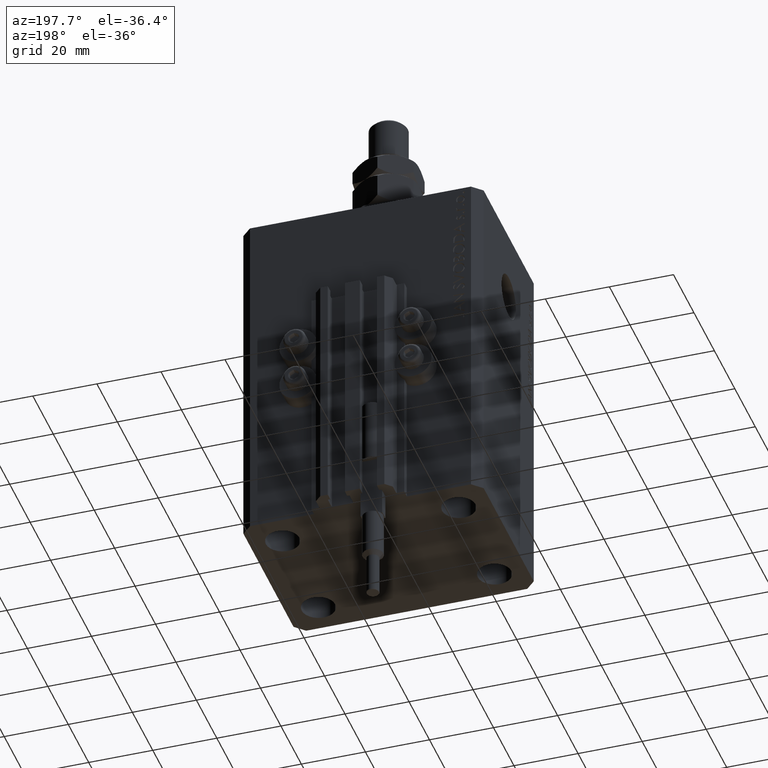
[diagram: clean part render]
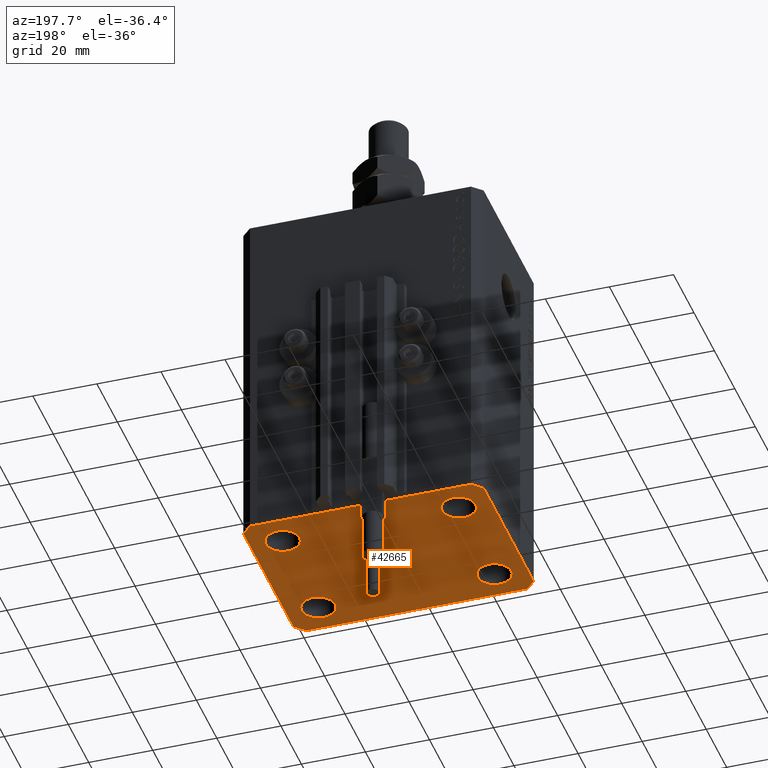
[diagram: same view with one face highlighted and labeled with its STEP entity id]
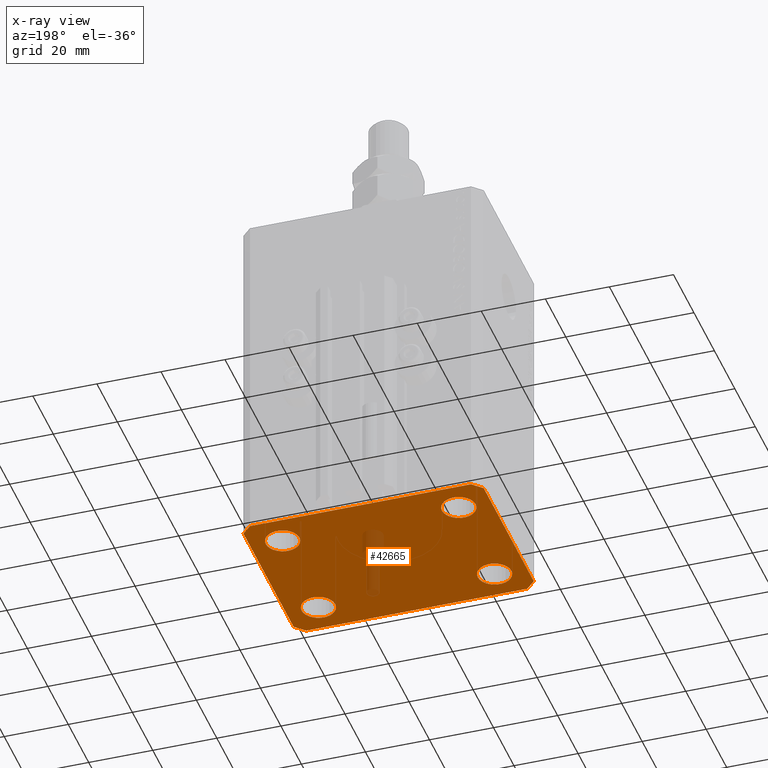
[diagram: x-ray of the same camera — body ghosted, the highlighted face saturated]
A machine part, auxiliary view. The second image highlights one B-rep face of the part: STEP entity #42665.
The next image is the same camera in x-ray: the body ghosted, the highlighted face saturated — about 4% of this face is hidden behind the body in this view.
In plain terms, the highlighted planar face has unit normal (0, 0, 1).
Its self-contained STEP definition (entity closure, byte-faithful):
#176 = CARTESIAN_POINT ( 'NONE',  ( 0.000000000000000000, 0.000000000000000000, -110.0000000000000000 ) ) ;
#235 = LINE ( 'NONE', #46137, #36135 ) ;
#550 = DIRECTION ( 'NONE',  ( 1.000000000000000000, 0.000000000000000000, 0.000000000000000000 ) ) ;
#578 = EDGE_LOOP ( 'NONE', ( #5749, #34386 ) ) ;
#620 = ORIENTED_EDGE ( 'NONE', *, *, #46947, .F. ) ;
#677 = FACE_BOUND ( 'NONE', #4643, .T. ) ;
#1601 = DIRECTION ( 'NONE',  ( -0.000000000000000000, -0.000000000000000000, -1.000000000000000000 ) ) ;
#2041 = VERTEX_POINT ( 'NONE', #37086 ) ;
#2068 = AXIS2_PLACEMENT_3D ( 'NONE', #23052, #11523, #38089 ) ;
#2343 = VERTEX_POINT ( 'NONE', #10719 ) ;
#3255 = VERTEX_POINT ( 'NONE', #38784 ) ;
#3475 = FACE_BOUND ( 'NONE', #578, .T. ) ;
#4110 = AXIS2_PLACEMENT_3D ( 'NONE', #25479, #5917, #48530 ) ;
#4617 = EDGE_CURVE ( 'NONE', #2343, #38802, #42328, .T. ) ;
#4643 = EDGE_LOOP ( 'NONE', ( #35872, #31956 ) ) ;
#4925 = ORIENTED_EDGE ( 'NONE', *, *, #24273, .F. ) ;
#5039 = ORIENTED_EDGE ( 'NONE', *, *, #29933, .F. ) ;
#5137 = DIRECTION ( 'NONE',  ( 1.000000000000000000, 0.000000000000000000, 0.000000000000000000 ) ) ;
#5367 = EDGE_CURVE ( 'NONE', #29144, #14976, #29426, .T. ) ;
#5749 = ORIENTED_EDGE ( 'NONE', *, *, #22908, .F. ) ;
#5917 = DIRECTION ( 'NONE',  ( -0.000000000000000000, -0.000000000000000000, -1.000000000000000000 ) ) ;
#5986 = CIRCLE ( 'NONE', #2068, 5.250000000000000888 ) ;
#6015 = VERTEX_POINT ( 'NONE', #17285 ) ;
#6140 = CARTESIAN_POINT ( 'NONE',  ( 32.75000000000000000, 17.49999999999999289, -110.0000000000000000 ) ) ;
#6504 = ORIENTED_EDGE ( 'NONE', *, *, #31193, .F. ) ;
#6575 = VECTOR ( 'NONE', #8548, 1000.000000000000000 ) ;
#6783 = CIRCLE ( 'NONE', #38033, 5.250000000000000888 ) ;
#6841 = DIRECTION ( 'NONE',  ( 1.000000000000000000, 0.000000000000000000, 0.000000000000000000 ) ) ;
#8548 = DIRECTION ( 'NONE',  ( 0.000000000000000000, -1.000000000000000000, 0.000000000000000000 ) ) ;
#9000 = CARTESIAN_POINT ( 'NONE',  ( 34.50000000000056843, 27.50000000000000000, -110.0000000000000000 ) ) ;
#9128 = VECTOR ( 'NONE', #34310, 1000.000000000000000 ) ;
#9379 = CARTESIAN_POINT ( 'NONE',  ( 34.50000000000056843, 27.50000000000000000, -110.0000000000000000 ) ) ;
#9392 = CARTESIAN_POINT ( 'NONE',  ( -34.49999999999999289, 27.50000000000000000, -110.0000000000000000 ) ) ;
#9572 = CARTESIAN_POINT ( 'NONE',  ( -37.49999999999999289, -24.50000000000000000, -110.0000000000000000 ) ) ;
#9886 = VERTEX_POINT ( 'NONE', #21276 ) ;
#10719 = CARTESIAN_POINT ( 'NONE',  ( -34.49999999999998579, -27.49999999999999645, -110.0000000000000000 ) ) ;
#10849 = AXIS2_PLACEMENT_3D ( 'NONE', #176, #26792, #42818 ) ;
#11442 = CARTESIAN_POINT ( 'NONE',  ( 27.50000000000000000, 17.49999999999999289, -110.0000000000000000 ) ) ;
#11523 = DIRECTION ( 'NONE',  ( -0.000000000000000000, -0.000000000000000000, -1.000000000000000000 ) ) ;
#11587 = ORIENTED_EDGE ( 'NONE', *, *, #5367, .F. ) ;
#11810 = DIRECTION ( 'NONE',  ( 1.076236605503979380E-14, 1.000000000000000000, 0.000000000000000000 ) ) ;
#13385 = LINE ( 'NONE', #9379, #39003 ) ;
#13572 = VERTEX_POINT ( 'NONE', #6140 ) ;
#13604 = CARTESIAN_POINT ( 'NONE',  ( 27.50000000000000000, 17.49999999999999289, -110.0000000000000000 ) ) ;
#13653 = VECTOR ( 'NONE', #14304, 1000.000000000000114 ) ;
#14304 = DIRECTION ( 'NONE',  ( 0.7071067811865474617, 0.7071067811865474617, 0.000000000000000000 ) ) ;
#14976 = VERTEX_POINT ( 'NONE', #19975 ) ;
#15029 = AXIS2_PLACEMENT_3D ( 'NONE', #11442, #26972, #37508 ) ;
#15986 = FACE_BOUND ( 'NONE', #30718, .T. ) ;
#16445 = CIRCLE ( 'NONE', #17271, 5.250000000000000888 ) ;
#16771 = DIRECTION ( 'NONE',  ( -0.000000000000000000, -0.000000000000000000, -1.000000000000000000 ) ) ;
#17271 = AXIS2_PLACEMENT_3D ( 'NONE', #43011, #1601, #5137 ) ;
#17285 = CARTESIAN_POINT ( 'NONE',  ( -22.24999999999999289, -17.50000000000000000, -110.0000000000000000 ) ) ;
#17534 = VERTEX_POINT ( 'NONE', #40181 ) ;
#18060 = CARTESIAN_POINT ( 'NONE',  ( 34.49999999999999289, -27.49999999999999645, -110.0000000000000000 ) ) ;
#18279 = ORIENTED_EDGE ( 'NONE', *, *, #27476, .F. ) ;
#19579 = CARTESIAN_POINT ( 'NONE',  ( -37.49999999999999289, 24.50000000000000000, -110.0000000000000000 ) ) ;
#19975 = CARTESIAN_POINT ( 'NONE',  ( -37.49999999999999289, 24.50000000000000000, -110.0000000000000000 ) ) ;
#20265 = VERTEX_POINT ( 'NONE', #9000 ) ;
#20619 = CARTESIAN_POINT ( 'NONE',  ( 34.49999999999999289, -27.49999999999999645, -110.0000000000000000 ) ) ;
#21135 = DIRECTION ( 'NONE',  ( -0.000000000000000000, -0.000000000000000000, -1.000000000000000000 ) ) ;
#21202 = CIRCLE ( 'NONE', #49217, 5.250000000000000888 ) ;
#21276 = CARTESIAN_POINT ( 'NONE',  ( 37.50000000000051870, 24.49999999999995381, -110.0000000000000000 ) ) ;
#22658 = ORIENTED_EDGE ( 'NONE', *, *, #46245, .F. ) ;
#22908 = EDGE_CURVE ( 'NONE', #17534, #30527, #28462, .T. ) ;
#23052 = CARTESIAN_POINT ( 'NONE',  ( 27.49999999999999289, -17.50000000000000000, -110.0000000000000000 ) ) ;
#23587 = LINE ( 'NONE', #19579, #6575 ) ;
#24273 = EDGE_CURVE ( 'NONE', #3255, #38279, #5986, .T. ) ;
#24378 = CARTESIAN_POINT ( 'NONE',  ( -37.49999999999999289, -24.50000000000000000, -110.0000000000000000 ) ) ;
#24669 = DIRECTION ( 'NONE',  ( -1.000000000000000000, 0.000000000000000000, 0.000000000000000000 ) ) ;
#25401 = EDGE_LOOP ( 'NONE', ( #4925, #22658 ) ) ;
#25479 = CARTESIAN_POINT ( 'NONE',  ( -27.50000000000000000, 17.49999999999999645, -110.0000000000000000 ) ) ;
#26576 = ORIENTED_EDGE ( 'NONE', *, *, #39879, .F. ) ;
#26697 = DIRECTION ( 'NONE',  ( -0.000000000000000000, -0.000000000000000000, -1.000000000000000000 ) ) ;
#26792 = DIRECTION ( 'NONE',  ( 0.000000000000000000, 0.000000000000000000, 1.000000000000000000 ) ) ;
#26972 = DIRECTION ( 'NONE',  ( -0.000000000000000000, -0.000000000000000000, -1.000000000000000000 ) ) ;
#27333 = EDGE_CURVE ( 'NONE', #6015, #41869, #21202, .T. ) ;
#27476 = EDGE_CURVE ( 'NONE', #13572, #2041, #6783, .T. ) ;
#27527 = PLANE ( 'NONE',  #10849 ) ;
#27574 = DIRECTION ( 'NONE',  ( 1.000000000000000000, 0.000000000000000000, 0.000000000000000000 ) ) ;
#28275 = EDGE_CURVE ( 'NONE', #9886, #20265, #29407, .T. ) ;
#28462 = CIRCLE ( 'NONE', #36441, 5.250000000000000888 ) ;
#28776 = EDGE_CURVE ( 'NONE', #38802, #35904, #44387, .T. ) ;
#29144 = VERTEX_POINT ( 'NONE', #30288 ) ;
#29407 = LINE ( 'NONE', #37676, #37684 ) ;
#29426 = LINE ( 'NONE', #9392, #29948 ) ;
#29440 = CARTESIAN_POINT ( 'NONE',  ( -32.74999999999999289, -17.50000000000000000, -110.0000000000000000 ) ) ;
#29459 = EDGE_CURVE ( 'NONE', #30527, #17534, #37721, .T. ) ;
#29933 = EDGE_CURVE ( 'NONE', #35904, #9886, #235, .T. ) ;
#29948 = VECTOR ( 'NONE', #32690, 1000.000000000000000 ) ;
#30235 = CARTESIAN_POINT ( 'NONE',  ( -32.75000000000000000, 17.49999999999999645, -110.0000000000000000 ) ) ;
#30288 = CARTESIAN_POINT ( 'NONE',  ( -34.49999999999999289, 27.50000000000000000, -110.0000000000000000 ) ) ;
#30412 = CARTESIAN_POINT ( 'NONE',  ( -27.50000000000000000, 17.49999999999999645, -110.0000000000000000 ) ) ;
#30527 = VERTEX_POINT ( 'NONE', #30235 ) ;
#30589 = ORIENTED_EDGE ( 'NONE', *, *, #4617, .F. ) ;
#30718 = EDGE_LOOP ( 'NONE', ( #18279, #46341 ) ) ;
#31193 = EDGE_CURVE ( 'NONE', #14976, #43310, #23587, .T. ) ;
#31629 = LINE ( 'NONE', #9572, #39582 ) ;
#31956 = ORIENTED_EDGE ( 'NONE', *, *, #43058, .F. ) ;
#32690 = DIRECTION ( 'NONE',  ( -0.7071067811865471286, -0.7071067811865479058, 0.000000000000000000 ) ) ;
#33806 = CARTESIAN_POINT ( 'NONE',  ( -34.49999999999998579, -27.49999999999999645, -110.0000000000000000 ) ) ;
#33936 = DIRECTION ( 'NONE',  ( -0.000000000000000000, -0.000000000000000000, -1.000000000000000000 ) ) ;
#34310 = DIRECTION ( 'NONE',  ( 1.000000000000000000, 0.000000000000000000, 0.000000000000000000 ) ) ;
#34386 = ORIENTED_EDGE ( 'NONE', *, *, #29459, .F. ) ;
#35872 = ORIENTED_EDGE ( 'NONE', *, *, #27333, .F. ) ;
#35904 = VERTEX_POINT ( 'NONE', #46521 ) ;
#36135 = VECTOR ( 'NONE', #11810, 1000.000000000000000 ) ;
#36441 = AXIS2_PLACEMENT_3D ( 'NONE', #30412, #33936, #550 ) ;
#37086 = CARTESIAN_POINT ( 'NONE',  ( 22.25000000000000000, 17.49999999999999289, -110.0000000000000000 ) ) ;
#37443 = EDGE_LOOP ( 'NONE', ( #620, #46659, #5039, #41487, #30589, #26576, #6504, #11587 ) ) ;
#37508 = DIRECTION ( 'NONE',  ( 1.000000000000000000, 0.000000000000000000, 0.000000000000000000 ) ) ;
#37676 = CARTESIAN_POINT ( 'NONE',  ( 37.50000000000051870, 24.49999999999995381, -110.0000000000000000 ) ) ;
#37684 = VECTOR ( 'NONE', #48202, 1000.000000000000114 ) ;
#37721 = CIRCLE ( 'NONE', #4110, 5.250000000000000888 ) ;
#38033 = AXIS2_PLACEMENT_3D ( 'NONE', #13604, #21135, #6841 ) ;
#38089 = DIRECTION ( 'NONE',  ( 1.000000000000000000, 0.000000000000000000, 0.000000000000000000 ) ) ;
#38181 = AXIS2_PLACEMENT_3D ( 'NONE', #39847, #16771, #27574 ) ;
#38279 = VERTEX_POINT ( 'NONE', #40337 ) ;
#38784 = CARTESIAN_POINT ( 'NONE',  ( 32.74999999999999289, -17.50000000000000000, -110.0000000000000000 ) ) ;
#38802 = VERTEX_POINT ( 'NONE', #20619 ) ;
#39003 = VECTOR ( 'NONE', #24669, 1000.000000000000000 ) ;
#39582 = VECTOR ( 'NONE', #40155, 1000.000000000000000 ) ;
#39827 = CIRCLE ( 'NONE', #15029, 5.250000000000000888 ) ;
#39847 = CARTESIAN_POINT ( 'NONE',  ( 27.49999999999999289, -17.50000000000000000, -110.0000000000000000 ) ) ;
#39879 = EDGE_CURVE ( 'NONE', #43310, #2343, #31629, .T. ) ;
#40155 = DIRECTION ( 'NONE',  ( 0.7071067811865483499, -0.7071067811865466846, 0.000000000000000000 ) ) ;
#40181 = CARTESIAN_POINT ( 'NONE',  ( -22.25000000000000000, 17.49999999999999645, -110.0000000000000000 ) ) ;
#40337 = CARTESIAN_POINT ( 'NONE',  ( 22.24999999999999289, -17.50000000000000000, -110.0000000000000000 ) ) ;
#41487 = ORIENTED_EDGE ( 'NONE', *, *, #28776, .F. ) ;
#41835 = FACE_OUTER_BOUND ( 'NONE', #37443, .T. ) ;
#41869 = VERTEX_POINT ( 'NONE', #29440 ) ;
#41992 = DIRECTION ( 'NONE',  ( 1.000000000000000000, 0.000000000000000000, 0.000000000000000000 ) ) ;
#42328 = LINE ( 'NONE', #33806, #9128 ) ;
#42665 = ADVANCED_FACE ( 'NONE', ( #677, #49589, #15986, #3475, #41835 ), #27527, .F. ) ;
#42818 = DIRECTION ( 'NONE',  ( 1.000000000000000000, 0.000000000000000000, -0.000000000000000000 ) ) ;
#43011 = CARTESIAN_POINT ( 'NONE',  ( -27.49999999999999289, -17.50000000000000000, -110.0000000000000000 ) ) ;
#43058 = EDGE_CURVE ( 'NONE', #41869, #6015, #16445, .T. ) ;
#43310 = VERTEX_POINT ( 'NONE', #24378 ) ;
#44387 = LINE ( 'NONE', #18060, #13653 ) ;
#46137 = CARTESIAN_POINT ( 'NONE',  ( 37.49999999999999289, -24.50000000000000000, -110.0000000000000000 ) ) ;
#46245 = EDGE_CURVE ( 'NONE', #38279, #3255, #49406, .T. ) ;
#46341 = ORIENTED_EDGE ( 'NONE', *, *, #47590, .F. ) ;
#46467 = CARTESIAN_POINT ( 'NONE',  ( -27.49999999999999289, -17.50000000000000000, -110.0000000000000000 ) ) ;
#46521 = CARTESIAN_POINT ( 'NONE',  ( 37.49999999999999289, -24.50000000000000000, -110.0000000000000000 ) ) ;
#46659 = ORIENTED_EDGE ( 'NONE', *, *, #28275, .F. ) ;
#46947 = EDGE_CURVE ( 'NONE', #20265, #29144, #13385, .T. ) ;
#47590 = EDGE_CURVE ( 'NONE', #2041, #13572, #39827, .T. ) ;
#48202 = DIRECTION ( 'NONE',  ( -0.7071067811865364705, 0.7071067811865584529, 0.000000000000000000 ) ) ;
#48530 = DIRECTION ( 'NONE',  ( 1.000000000000000000, 0.000000000000000000, 0.000000000000000000 ) ) ;
#49217 = AXIS2_PLACEMENT_3D ( 'NONE', #46467, #26697, #41992 ) ;
#49406 = CIRCLE ( 'NONE', #38181, 5.250000000000000888 ) ;
#49589 = FACE_BOUND ( 'NONE', #25401, .T. ) ;